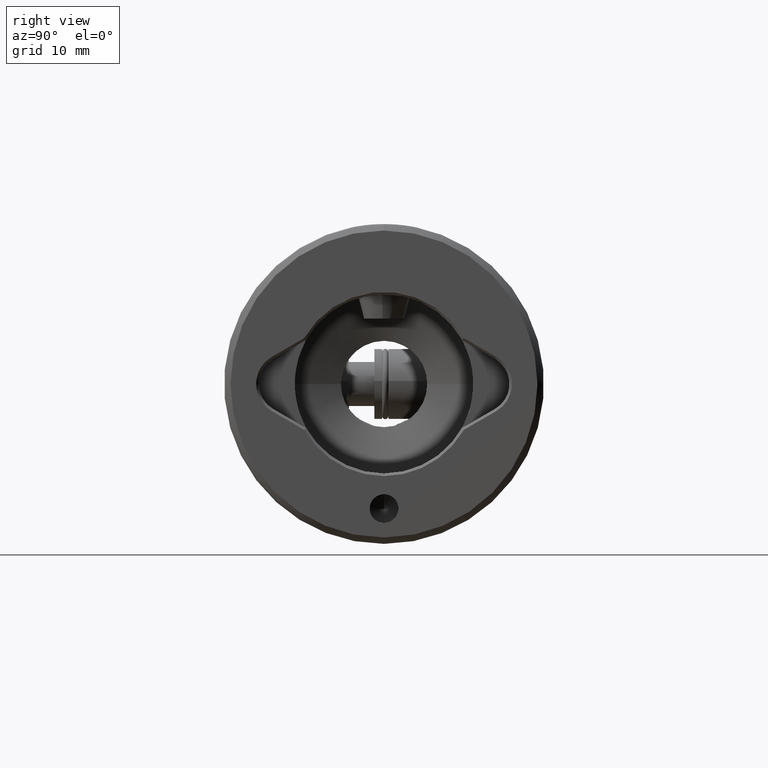
[diagram: clean part render]
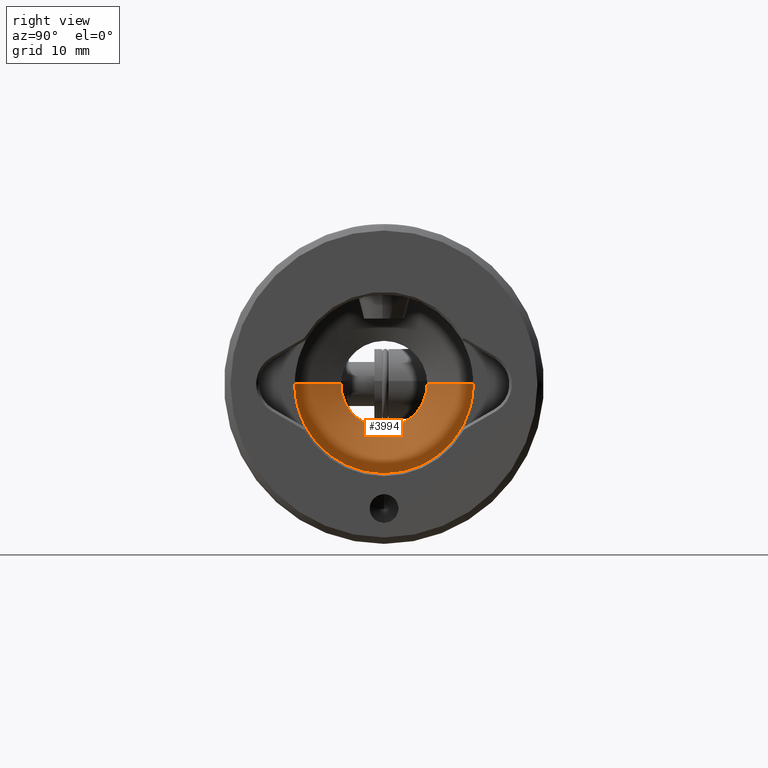
[diagram: same view with one face highlighted and labeled with its STEP entity id]
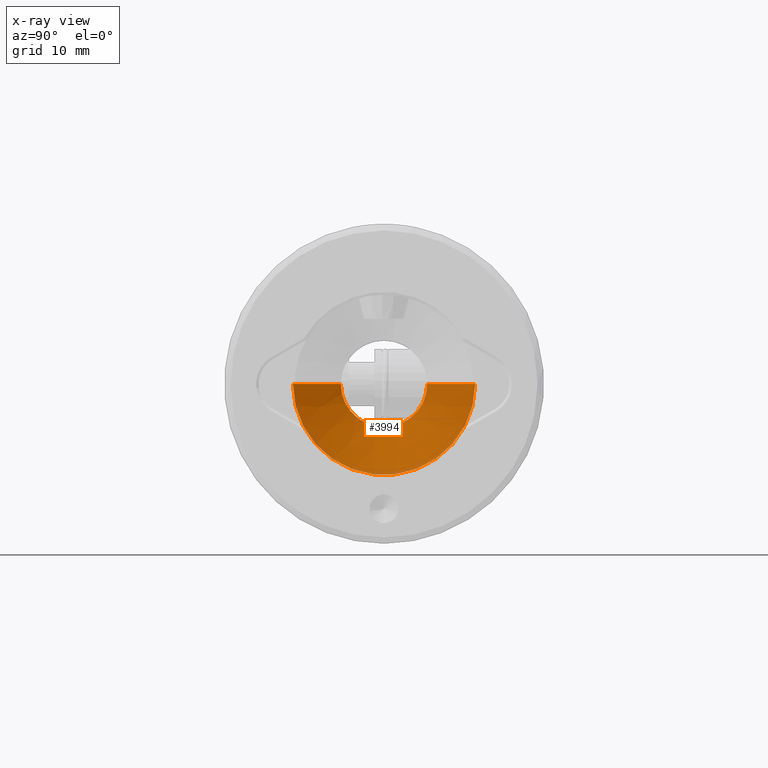
[diagram: x-ray of the same camera — body ghosted, the highlighted face saturated]
A machine part, right view. The second image highlights one B-rep face of the part: STEP entity #3994.
The next image is the same camera in x-ray: the body ghosted, the highlighted face saturated — about 4% of this face is hidden behind the body in this view.
In plain terms, the highlighted conical surface has half-angle 70 deg.
Its self-contained STEP definition (entity closure, byte-faithful):
#24 = DIRECTION ( 'NONE',  ( 0.0000000000000000000, 1.000000000000000000, 0.0000000000000000000 ) ) ;
#102 = VERTEX_POINT ( 'NONE', #2447 ) ;
#148 = DIRECTION ( 'NONE',  ( 1.150791560227852700E-016, -0.9396926207859103200, -0.3420201433256633300 ) ) ;
#219 = CARTESIAN_POINT ( 'NONE',  ( 0.0000000000000000000, -5.406188145609239600E-015, 34.72977675699647200 ) ) ;
#224 = EDGE_CURVE ( 'NONE', #3937, #3900, #1449, .T. ) ;
#262 = CARTESIAN_POINT ( 'NONE',  ( 1.745121688784979400E-015, -14.25000000000001200, 32.00000000000000000 ) ) ;
#269 = EDGE_CURVE ( 'NONE', #2562, #3937, #3622, .T. ) ;
#541 = DIRECTION ( 'NONE',  ( 0.0000000000000000000, 1.300461643580481600E-016, -1.000000000000000000 ) ) ;
#623 = ORIENTED_EDGE ( 'NONE', *, *, #224, .F. ) ;
#693 = FACE_OUTER_BOUND ( 'NONE', #2393, .T. ) ;
#963 = DIRECTION ( 'NONE',  ( 0.0000000000000000000, 1.000000000000000000, 0.0000000000000000000 ) ) ;
#1343 = VECTOR ( 'NONE', #148, 1000.000000000000100 ) ;
#1449 = LINE ( 'NONE', #2538, #3511 ) ;
#1464 = DIRECTION ( 'NONE',  ( 0.0000000000000000000, 0.9396926207859104300, -0.3420201433256631100 ) ) ;
#1572 = CARTESIAN_POINT ( 'NONE',  ( 1.745121688784978600E-015, -14.25000000000000700, 32.00000000000000000 ) ) ;
#1604 = ORIENTED_EDGE ( 'NONE', *, *, #3387, .F. ) ;
#1857 = ORIENTED_EDGE ( 'NONE', *, *, #269, .F. ) ;
#2048 = EDGE_CURVE ( 'NONE', #3900, #3705, #3675, .T. ) ;
#2214 = DIRECTION ( 'NONE',  ( 0.0000000000000000000, 1.300461643580481600E-016, -1.000000000000000000 ) ) ;
#2393 = EDGE_LOOP ( 'NONE', ( #1604, #4303, #3989, #623, #1857 ) ) ;
#2447 = CARTESIAN_POINT ( 'NONE',  ( 1.285879139104721200E-015, -6.750000000000006200, 34.72977675699647200 ) ) ;
#2459 = AXIS2_PLACEMENT_3D ( 'NONE', #3963, #2214, #24 ) ;
#2538 = CARTESIAN_POINT ( 'NONE',  ( 0.0000000000000000000, 14.24999999999999600, 32.00000000000000000 ) ) ;
#2555 = AXIS2_PLACEMENT_3D ( 'NONE', #4334, #2605, #2959 ) ;
#2562 = VERTEX_POINT ( 'NONE', #4057 ) ;
#2605 = DIRECTION ( 'NONE',  ( 0.0000000000000000000, -1.300461643580481600E-016, 1.000000000000000000 ) ) ;
#2681 = CARTESIAN_POINT ( 'NONE',  ( 0.0000000000000000000, 6.749999999999994700, 34.72977675699647200 ) ) ;
#2816 = CIRCLE ( 'NONE', #3943, 6.750000000000000000 ) ;
#2959 = DIRECTION ( 'NONE',  ( 0.0000000000000000000, -1.000000000000000000, 0.0000000000000000000 ) ) ;
#3181 = CONICAL_SURFACE ( 'NONE', #4538, 14.25000000000000200, 1.221730476396036600 ) ;
#3253 = LINE ( 'NONE', #1572, #1343 ) ;
#3362 = CARTESIAN_POINT ( 'NONE',  ( 0.0000000000000000000, 14.24999999999999100, 32.00000000000000000 ) ) ;
#3387 = EDGE_CURVE ( 'NONE', #102, #2562, #2816, .T. ) ;
#3441 = CARTESIAN_POINT ( 'NONE',  ( 0.0000000000000000000, -5.051191148808097200E-015, 32.00000000000000000 ) ) ;
#3511 = VECTOR ( 'NONE', #1464, 1000.000000000000000 ) ;
#3622 = CIRCLE ( 'NONE', #2459, 6.750000000000000000 ) ;
#3675 = CIRCLE ( 'NONE', #2555, 14.25000000000000200 ) ;
#3705 = VERTEX_POINT ( 'NONE', #262 ) ;
#3769 = EDGE_CURVE ( 'NONE', #102, #3705, #3253, .T. ) ;
#3900 = VERTEX_POINT ( 'NONE', #3362 ) ;
#3937 = VERTEX_POINT ( 'NONE', #2681 ) ;
#3943 = AXIS2_PLACEMENT_3D ( 'NONE', #219, #4527, #4168 ) ;
#3963 = CARTESIAN_POINT ( 'NONE',  ( 0.0000000000000000000, -5.406188145609239600E-015, 34.72977675699647200 ) ) ;
#3989 = ORIENTED_EDGE ( 'NONE', *, *, #2048, .F. ) ;
#3994 = ADVANCED_FACE ( 'NONE', ( #693 ), #3181, .F. ) ;
#4057 = CARTESIAN_POINT ( 'NONE',  ( -6.750000000000000000, 8.266365894244631400E-016, 34.72977675699647200 ) ) ;
#4168 = DIRECTION ( 'NONE',  ( 0.0000000000000000000, 1.000000000000000000, 0.0000000000000000000 ) ) ;
#4303 = ORIENTED_EDGE ( 'NONE', *, *, #3769, .T. ) ;
#4334 = CARTESIAN_POINT ( 'NONE',  ( 0.0000000000000000000, -5.051191148808097200E-015, 32.00000000000000000 ) ) ;
#4527 = DIRECTION ( 'NONE',  ( 0.0000000000000000000, 1.300461643580481600E-016, -1.000000000000000000 ) ) ;
#4538 = AXIS2_PLACEMENT_3D ( 'NONE', #3441, #541, #963 ) ;